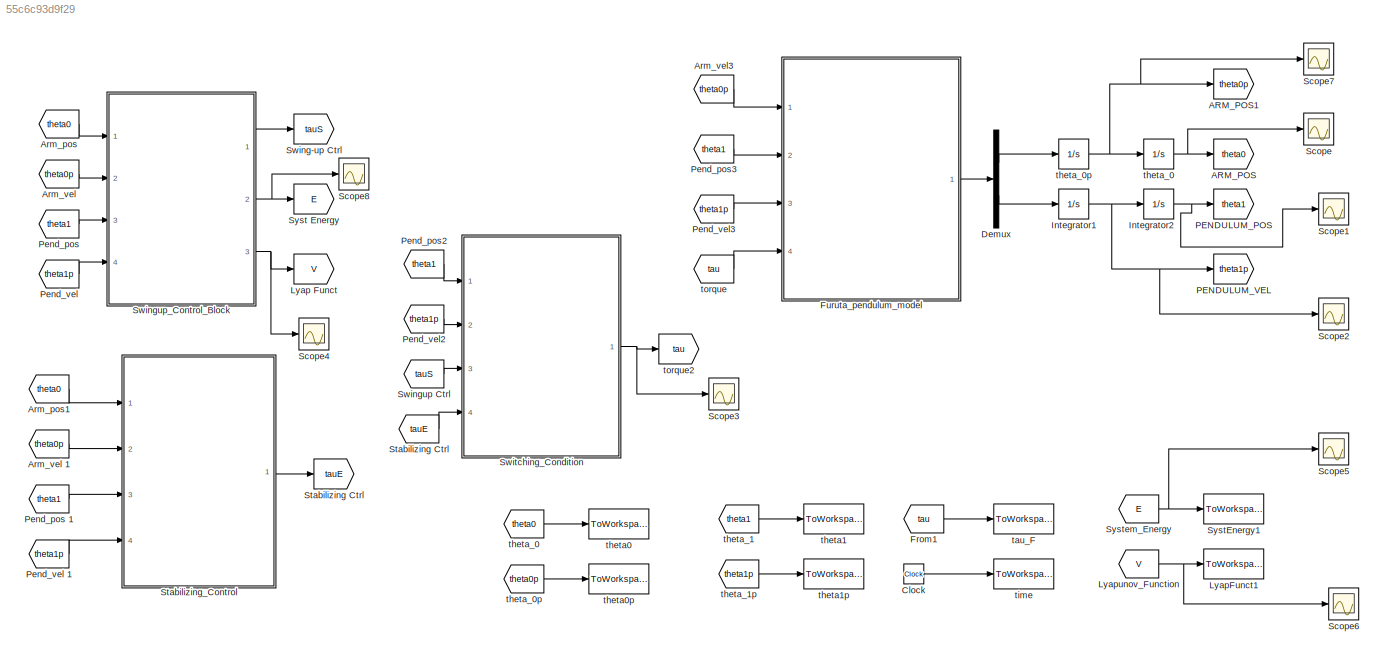
MODEL slx_55c6c93d9f29
KIND model
CONFIG AbsTol = auto
CONFIG EnableMultiTasking = off
CONFIG FixedStep = 0.001
CONFIG MaxStep = auto
CONFIG MinStep = auto
CONFIG RelTol = 1e-3
CONFIG SampleTimeConstraint = Unconstrained
CONFIG Solver = FixedStepAuto
CONFIG SolverName = FixedStepAuto
CONFIG StartTime = 0.0
CONFIG StopTime = 200
BLOCK [Goto] ARM_POS
  GotoTag = theta0
BLOCK [Goto] ARM_POS1
  GotoTag = theta0p
BLOCK [From] Arm_pos
  GotoTag = theta0
BLOCK [From] Arm_pos1
  GotoTag = theta0
BLOCK [From] Arm_vel 
  GotoTag = theta0p
BLOCK [From] Arm_vel 1
  GotoTag = theta0p
BLOCK [From] Arm_vel3
  GotoTag = theta0p
BLOCK [Clock] Clock
BLOCK [Demux] Demux
  DisplayOption = bar
  Outputs = 2
  Ports = [1, 2]
BLOCK [From] From1
  GotoTag = tau
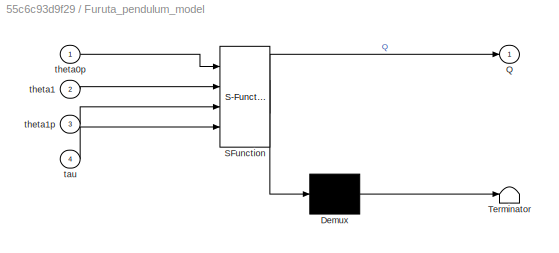
BLOCK [SubSystem] Furuta_pendulum_model
  ErrorFcn = Stateflow.Translate.translate
  PermitHierarchicalResolution = ExplicitOnly
  Ports = [4, 1]
  RequestExecContextInheritance = off
  SFBlockType = MATLAB Function
  TreatAsAtomicUnit = on
BLOCK [Demux] Furuta_pendulum_model/ Demux 
  Outputs = 1
  Ports = [1, 1]
BLOCK [S-Function] Furuta_pendulum_model/ SFunction 
  EnableBusSupport = on
  FunctionName = sf_sfun
  PortCounts = [4 2]
  Ports = [4, 2]
  SFcnIsStateOwnerBlock = off
  SFunctionDeploymentMode = off
  Tag = Stateflow S-Function furuta_pendulum_v_1 2
BLOCK [Terminator] Furuta_pendulum_model/ Terminator 
BLOCK [Outport] Furuta_pendulum_model/Q
  IconDisplay = Port number
BLOCK [Inport] Furuta_pendulum_model/tau
  IconDisplay = Port number
  Port = 4
BLOCK [Inport] Furuta_pendulum_model/theta0p
  IconDisplay = Port number
BLOCK [Inport] Furuta_pendulum_model/theta1
  IconDisplay = Port number
  Port = 2
BLOCK [Inport] Furuta_pendulum_model/theta1p
  IconDisplay = Port number
  Port = 3
BLOCK [Integrator] Integrator1
  Ports = [1, 1]
BLOCK [Integrator] Integrator2
  InitialCondition = 1
  Ports = [1, 1]
BLOCK [Goto] Lyap Funct
  GotoTag = V
BLOCK [ToWorkspace] LyapFunct1
  FixptAsFi = on
  MaxDataPoints = inf
  Ports = [1]
  SampleTime = -1
  Save2DSignal = 3-D array (concatenate along third dimension)
  VariableName = V
BLOCK [From] Lyapunov_Function
  GotoTag = V
BLOCK [Goto] PENDULUM_POS
  GotoTag = theta1
BLOCK [Goto] PENDULUM_VEL
  GotoTag = theta1p
BLOCK [From] Pend_pos 
  GotoTag = theta1
BLOCK [From] Pend_pos 1
  GotoTag = theta1
BLOCK [From] Pend_pos2
  GotoTag = theta1
BLOCK [From] Pend_pos3
  GotoTag = theta1
BLOCK [From] Pend_vel 
  GotoTag = theta1p
BLOCK [From] Pend_vel 1
  GotoTag = theta1p
BLOCK [From] Pend_vel2
  GotoTag = theta1p
BLOCK [From] Pend_vel3
  GotoTag = theta1p
BLOCK [Scope] Scope
  Floating = off
  NumInputPorts = 1
  Ports = [1]
  ScopeSpecificationString = Simulink.scopes.TimeScopeBlockCfg('CurrentConfiguration', extmgr.ConfigurationSet(extmgr.Configuration('Core','General UI',true),extmgr.Configuration('Core','Source UI',true),extmgr.Configuration('Sources','WiredSimulink',true),extmgr.Configuration('Visuals','Time Domain',true,'SerializedDisplays',{struct('MinYLimReal','-0.06812','MaxYLimReal','0.46631','YLabelReal','','MinYLimMag','0.00000','MaxY...<+1383ch>
BLOCK [Scope] Scope1
  Floating = off
  NumInputPorts = 1
  Ports = [1]
  ScopeSpecificationString = Simulink.scopes.TimeScopeBlockCfg('CurrentConfiguration', extmgr.ConfigurationSet(extmgr.Configuration('Core','General UI',true),extmgr.Configuration('Core','Source UI',true),extmgr.Configuration('Sources','WiredSimulink',true,'DataLoggingVariableName','ScopeData1'),extmgr.Configuration('Visuals','Time Domain',true,'SerializedDisplays',{struct('MinYLimReal','-291.74608','MaxYLimReal','39.26948','Y...<+1437ch>
BLOCK [Scope] Scope2
  Floating = off
  NumInputPorts = 1
  Ports = [1]
  ScopeSpecificationString = Simulink.scopes.TimeScopeBlockCfg('CurrentConfiguration', extmgr.ConfigurationSet(extmgr.Configuration('Core','General UI',true),extmgr.Configuration('Core','Source UI',true),extmgr.Configuration('Sources','WiredSimulink',true,'DataLoggingVariableName','ScopeData2'),extmgr.Configuration('Visuals','Time Domain',true,'SerializedDisplays',{struct('MinYLimReal','-17.83386','MaxYLimReal','17.77739','YL...<+1405ch>
BLOCK [Scope] Scope3
  Floating = off
  NumInputPorts = 1
  Ports = [1]
  ScopeSpecificationString = Simulink.scopes.TimeScopeBlockCfg('CurrentConfiguration', extmgr.ConfigurationSet(extmgr.Configuration('Core','General UI',true),extmgr.Configuration('Core','Source UI',true),extmgr.Configuration('Sources','WiredSimulink',true,'DataLoggingVariableName','ScopeData3'),extmgr.Configuration('Visuals','Time Domain',true,'SerializedDisplays',{struct('MinYLimReal','-0.08772','MaxYLimReal','0.08782','YLab...<+1407ch>
BLOCK [Scope] Scope4
  Floating = off
  NumInputPorts = 1
  Ports = [1]
  ScopeSpecificationString = Simulink.scopes.TimeScopeBlockCfg('CurrentConfiguration', extmgr.ConfigurationSet(extmgr.Configuration('Core','General UI',true),extmgr.Configuration('Core','Source UI',true),extmgr.Configuration('Sources','WiredSimulink',true,'DataLoggingVariableName','ScopeData4'),extmgr.Configuration('Visuals','Time Domain',true,'SerializedDisplays',{struct('MinYLimReal','-0.19576','MaxYLimReal','1.76187','YLab...<+1436ch>
BLOCK [Scope] Scope5
  Floating = off
  NumInputPorts = 1
  Ports = [1]
  ScopeSpecificationString = Simulink.scopes.TimeScopeBlockCfg('CurrentConfiguration', extmgr.ConfigurationSet(extmgr.Configuration('Core','General UI',true),extmgr.Configuration('Core','Source UI',true),extmgr.Configuration('Sources','WiredSimulink',true,'DataLoggingVariableName','ScopeData5'),extmgr.Configuration('Visuals','Time Domain',true,'SerializedDisplays',{struct('MinYLimReal','-0.01465','MaxYLimReal','0.00281','YLab...<+1387ch>
BLOCK [Scope] Scope6
  Floating = off
  NumInputPorts = 1
  Ports = [1]
  ScopeSpecificationString = Simulink.scopes.TimeScopeBlockCfg('CurrentConfiguration', extmgr.ConfigurationSet(extmgr.Configuration('Core','General UI',true),extmgr.Configuration('Core','Source UI',true),extmgr.Configuration('Sources','WiredSimulink',true,'DataLoggingVariableName','ScopeData6'),extmgr.Configuration('Visuals','Time Domain',true,'SerializedDisplays',{struct('MinYLimReal','-0.19576','MaxYLimReal','1.76187','YLab...<+1390ch>
BLOCK [Scope] Scope7
  Floating = off
  NumInputPorts = 1
  Ports = [1]
  ScopeSpecificationString = Simulink.scopes.TimeScopeBlockCfg('CurrentConfiguration', extmgr.ConfigurationSet(extmgr.Configuration('Core','General UI',true),extmgr.Configuration('Core','Source UI',true),extmgr.Configuration('Sources','WiredSimulink',true,'DataLoggingVariableName','ScopeData7'),extmgr.Configuration('Visuals','Time Domain',true,'SerializedDisplays',{struct('MinYLimReal','-0.54601','MaxYLimReal','2.02698','YLab...<+1396ch>
BLOCK [Scope] Scope8
  Floating = off
  NumInputPorts = 1
  Ports = [1]
  ScopeSpecificationString = Simulink.scopes.TimeScopeBlockCfg('CurrentConfiguration', extmgr.ConfigurationSet(extmgr.Configuration('Core','General UI',true),extmgr.Configuration('Core','Source UI',true),extmgr.Configuration('Sources','WiredSimulink',true,'DataLoggingVariableName','ScopeData8'),extmgr.Configuration('Visuals','Time Domain',true,'SerializedDisplays',{struct('MinYLimReal','-0.01465','MaxYLimReal','0.00281','YLab...<+1411ch>
BLOCK [From] Stabilizing Ctrl
  GotoTag = tauE
BLOCK [Goto] Stabilizing Ctrl 
  GotoTag = tauE
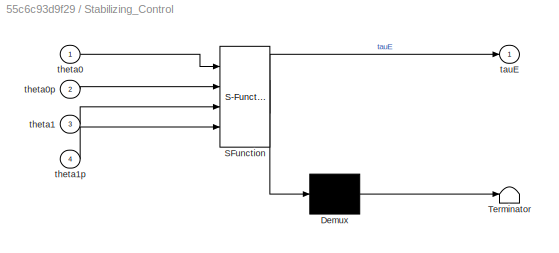
BLOCK [SubSystem] Stabilizing_Control
  ErrorFcn = Stateflow.Translate.translate
  PermitHierarchicalResolution = ExplicitOnly
  Ports = [4, 1]
  RequestExecContextInheritance = off
  SFBlockType = MATLAB Function
  TreatAsAtomicUnit = on
BLOCK [Demux] Stabilizing_Control/ Demux 
  Outputs = 1
  Ports = [1, 1]
BLOCK [S-Function] Stabilizing_Control/ SFunction 
  EnableBusSupport = on
  FunctionName = sf_sfun
  PortCounts = [4 2]
  Ports = [4, 2]
  SFcnIsStateOwnerBlock = off
  SFunctionDeploymentMode = off
  Tag = Stateflow S-Function furuta_pendulum_v_1 3
BLOCK [Terminator] Stabilizing_Control/ Terminator 
BLOCK [Outport] Stabilizing_Control/tauE
  IconDisplay = Port number
BLOCK [Inport] Stabilizing_Control/theta0
  IconDisplay = Port number
BLOCK [Inport] Stabilizing_Control/theta0p
  IconDisplay = Port number
  Port = 2
BLOCK [Inport] Stabilizing_Control/theta1
  IconDisplay = Port number
  Port = 3
BLOCK [Inport] Stabilizing_Control/theta1p
  IconDisplay = Port number
  Port = 4
BLOCK [Goto] Swing-up Ctrl
  GotoTag = tauS
BLOCK [From] Swingup Ctrl
  GotoTag = tauS
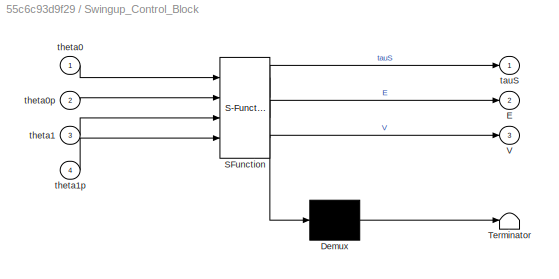
BLOCK [SubSystem] Swingup_Control_Block
  ErrorFcn = Stateflow.Translate.translate
  PermitHierarchicalResolution = ExplicitOnly
  Ports = [4, 3]
  RequestExecContextInheritance = off
  SFBlockType = MATLAB Function
  TreatAsAtomicUnit = on
BLOCK [Demux] Swingup_Control_Block/ Demux 
  Outputs = 1
  Ports = [1, 1]
BLOCK [S-Function] Swingup_Control_Block/ SFunction 
  EnableBusSupport = on
  FunctionName = sf_sfun
  PortCounts = [4 4]
  Ports = [4, 4]
  SFcnIsStateOwnerBlock = off
  SFunctionDeploymentMode = off
  Tag = Stateflow S-Function furuta_pendulum_v_1 1
BLOCK [Terminator] Swingup_Control_Block/ Terminator 
BLOCK [Outport] Swingup_Control_Block/E
  IconDisplay = Port number
  Port = 2
BLOCK [Outport] Swingup_Control_Block/V
  IconDisplay = Port number
  Port = 3
BLOCK [Outport] Swingup_Control_Block/tauS
  IconDisplay = Port number
BLOCK [Inport] Swingup_Control_Block/theta0
  IconDisplay = Port number
BLOCK [Inport] Swingup_Control_Block/theta0p
  IconDisplay = Port number
  Port = 2
BLOCK [Inport] Swingup_Control_Block/theta1
  IconDisplay = Port number
  Port = 3
BLOCK [Inport] Swingup_Control_Block/theta1p
  IconDisplay = Port number
  Port = 4
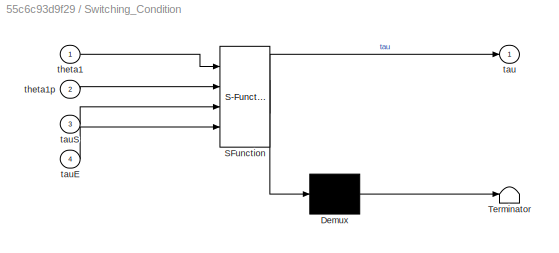
BLOCK [SubSystem] Switching_Condition
  ErrorFcn = Stateflow.Translate.translate
  PermitHierarchicalResolution = ExplicitOnly
  Ports = [4, 1]
  RequestExecContextInheritance = off
  SFBlockType = MATLAB Function
  TreatAsAtomicUnit = on
BLOCK [Demux] Switching_Condition/ Demux 
  Outputs = 1
  Ports = [1, 1]
BLOCK [S-Function] Switching_Condition/ SFunction 
  EnableBusSupport = on
  FunctionName = sf_sfun
  PortCounts = [4 2]
  Ports = [4, 2]
  SFcnIsStateOwnerBlock = off
  SFunctionDeploymentMode = off
  Tag = Stateflow S-Function furuta_pendulum_v_1 4
BLOCK [Terminator] Switching_Condition/ Terminator 
BLOCK [Outport] Switching_Condition/tau
  IconDisplay = Port number
BLOCK [Inport] Switching_Condition/tauE
  IconDisplay = Port number
  Port = 4
BLOCK [Inport] Switching_Condition/tauS
  IconDisplay = Port number
  Port = 3
BLOCK [Inport] Switching_Condition/theta1
  IconDisplay = Port number
BLOCK [Inport] Switching_Condition/theta1p
  IconDisplay = Port number
  Port = 2
BLOCK [Goto] Syst Energy
  GotoTag = E
BLOCK [ToWorkspace] SystEnergy1
  FixptAsFi = on
  MaxDataPoints = inf
  Ports = [1]
  SampleTime = -1
  Save2DSignal = 3-D array (concatenate along third dimension)
  VariableName = E
BLOCK [From] System_Energy
  GotoTag = E
BLOCK [ToWorkspace] tau_F
  FixptAsFi = on
  MaxDataPoints = inf
  Ports = [1]
  SampleTime = -1
  Save2DSignal = 3-D array (concatenate along third dimension)
  VariableName = tauF
BLOCK [ToWorkspace] theta0
  FixptAsFi = on
  MaxDataPoints = inf
  Ports = [1]
  SampleTime = -1
  Save2DSignal = 3-D array (concatenate along third dimension)
  VariableName = theta0
BLOCK [ToWorkspace] theta0p
  FixptAsFi = on
  MaxDataPoints = inf
  Ports = [1]
  SampleTime = -1
  Save2DSignal = 3-D array (concatenate along third dimension)
  VariableName = theta0p
BLOCK [ToWorkspace] theta1
  FixptAsFi = on
  MaxDataPoints = inf
  Ports = [1]
  SampleTime = -1
  Save2DSignal = 3-D array (concatenate along third dimension)
  VariableName = theta1
BLOCK [ToWorkspace] theta1p 
  FixptAsFi = on
  MaxDataPoints = inf
  Ports = [1]
  SampleTime = -1
  Save2DSignal = 3-D array (concatenate along third dimension)
  VariableName = theta1p
BLOCK [From] theta_0
  GotoTag = theta0
BLOCK [Integrator] theta_0 
  Ports = [1, 1]
BLOCK [Integrator] theta_0p
  Ports = [1, 1]
BLOCK [From] theta_0p 
  GotoTag = theta0p
BLOCK [From] theta_1
  GotoTag = theta1
BLOCK [From] theta_1p 
  GotoTag = theta1p
BLOCK [ToWorkspace] time
  FixptAsFi = on
  MaxDataPoints = inf
  Ports = [1]
  SampleTime = -1
  Save2DSignal = 3-D array (concatenate along third dimension)
  VariableName = t
BLOCK [From] torque
  GotoTag = tau
BLOCK [Goto] torque2 
  GotoTag = tau
LINE Arm_pos1:1 -> Stabilizing_Control:1
LINE Arm_pos:1 -> Swingup_Control_Block:1
LINE Arm_vel 1:1 -> Stabilizing_Control:2
LINE Arm_vel :1 -> Swingup_Control_Block:2
LINE Arm_vel3:1 -> Furuta_pendulum_model:1
LINE Clock:1 -> time:1
LINE Demux:1 -> theta_0p:1
LINE Demux:2 -> Integrator1:1
LINE From1:1 -> tau_F:1
LINE Furuta_pendulum_model:1 -> Demux:1
NET Integrator1:1 -> Integrator2:1, PENDULUM_VEL:1, Scope2:1
NET Integrator2:1 -> PENDULUM_POS:1, Scope1:1
NET Lyapunov_Function:1 -> LyapFunct1:1, Scope6:1
LINE Pend_pos 1:1 -> Stabilizing_Control:3
LINE Pend_pos :1 -> Swingup_Control_Block:3
LINE Pend_pos2:1 -> Switching_Condition:1
LINE Pend_pos3:1 -> Furuta_pendulum_model:2
LINE Pend_vel 1:1 -> Stabilizing_Control:4
LINE Pend_vel :1 -> Swingup_Control_Block:4
LINE Pend_vel2:1 -> Switching_Condition:2
LINE Pend_vel3:1 -> Furuta_pendulum_model:3
LINE Stabilizing Ctrl:1 -> Switching_Condition:4
LINE Stabilizing_Control:1 -> Stabilizing Ctrl :1
LINE Swingup Ctrl:1 -> Switching_Condition:3
LINE Swingup_Control_Block:1 -> Swing-up Ctrl:1
NET Swingup_Control_Block:2 -> Scope8:1, Syst Energy:1
NET Swingup_Control_Block:3 -> Lyap Funct:1, Scope4:1
NET Switching_Condition:1 -> Scope3:1, torque2 :1
NET System_Energy:1 -> Scope5:1, SystEnergy1:1
NET theta_0 :1 -> ARM_POS:1, Scope:1
LINE theta_0:1 -> theta0:1
LINE theta_0p :1 -> theta0p:1
NET theta_0p:1 -> ARM_POS1:1, Scope7:1, theta_0 :1
LINE theta_1:1 -> theta1:1
LINE theta_1p :1 -> theta1p :1
LINE torque:1 -> Furuta_pendulum_model:4
note: NET lines group one-source signal fan-out (src -> all destinations, sorted); 1:1 wires keep LINE
CHART Swingup_Control_Block states=1 transitions=1
  STATE_LABEL 'eML_blk_kernel()'
  STATE_LABEL 'SCRIPT:\n\nfunction [tauS,E,V] = fcn(theta0,theta0p,theta1,theta1p)\n\n%%-------------Parameters\ng = 9.81;\nlpc = 129e-3;\nlb = 155e-3;\nmp = 22.18e-3;\nJ1 = 184.5e-6;\nI0 = 238.49e-6;\nke = 1900;\nkw =1;\nkdelta = 3;\nktheta = 3;\n\nqp=[theta0p;theta1p];\nM11= I0 + mp*(lb^2) + (lpc^2)*mp*(sin(theta1)^2);\nM12= mp*lb*lpc*cos(theta1);\nM21= mp*lb*lpc*cos(theta1);\nM22= J1 + mp*(lpc^2);\nDq=[M11 M12;\nM21 M22];\n\ndetD=de...<+457ch>'
CHART Furuta_pendulum_model states=1 transitions=1
  STATE_LABEL 'eML_blk_kernel()'
  STATE_LABEL 'SCRIPT:\nfunction Q = modelo(theta0p,theta1,theta1p,tau)\n\n\n%%-----------Parameters-----------%%\ng = 9.81;\nl1 = 129e-3;\nL0 = 155e-3;\nm1 = 22.18e-3;\nJ1 = 184.5e-6;\nI0 = 238.49e-6;\n%%----- M(q)qpp + C(q, qp)qp + G(q) = T----%%\n%%----- q=[theta0;theta1]-----------%%\nM11= I0 + m1*(L0^2) + (l1^2)*m1*(sin(theta1)^2);\nM12= m1*L0*l1*cos(theta1);\nM21= m1*L0*l1*cos(theta1);\nM22= J1 + m1*(l1^2);\nM= [M11 M12;\nM...<+350ch>'
CHART Stabilizing_Control states=1 transitions=1
  STATE_LABEL 'eML_blk_kernel()'
  STATE_LABEL "SCRIPT:\nfunction tauE = fcn(theta0,theta0p,theta1,theta1p)\nif(theta1>pi)\ntheta1d=2*pi;\nelse\ntheta1d=0;\nend\nx=[theta0 theta0p (theta1-theta1d) theta1p];\nK=[-0.0118 -0.0118 -0.2742 -0.0298];\n%K= [-0.0804 -0.0804 -0.8269 -0.1304];\ntauE = -K*x';\n\n%------------\n"
CHART Switching_Condition states=1 transitions=1
  STATE_LABEL 'eML_blk_kernel()'
  STATE_LABEL 'SCRIPT:\nfunction tau = fcn(theta1,theta1p,tauS,tauE)\n\nif(theta1>pi)\ntheta1d=2*pi;\nelse\ntheta1d=0;\nend\n\nif sqrt(3*(theta1-theta1d)^2+0.1*(theta1p*theta1p)) < 0.2\ntau = tauE;\nelse\ntau= tauS;\nend'
